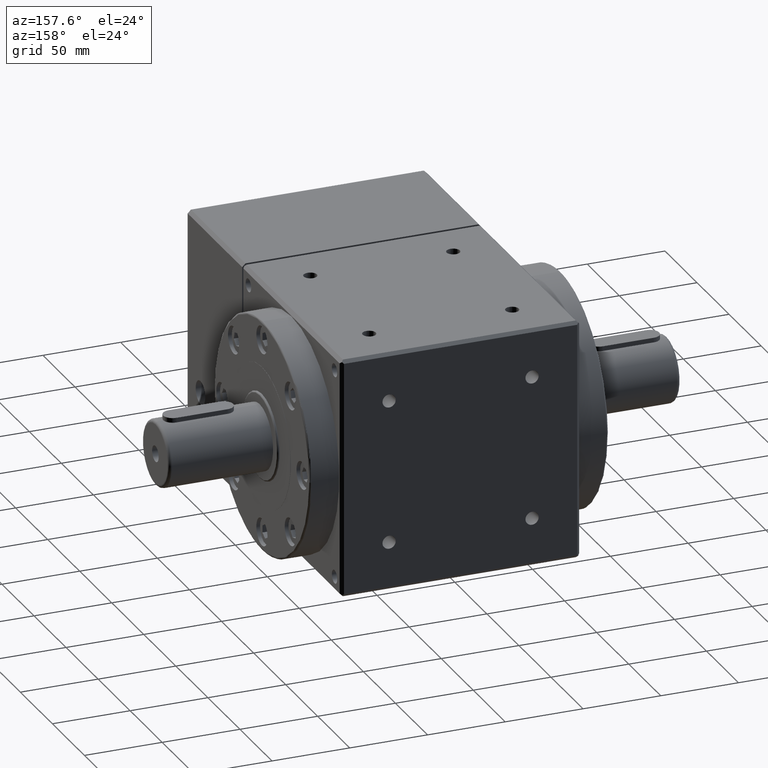
[diagram: clean part render]
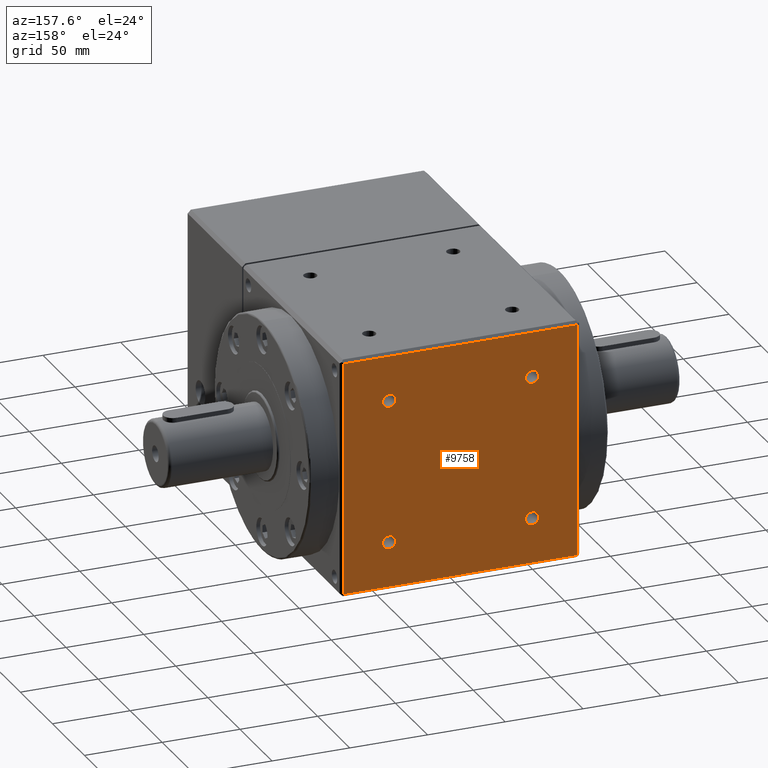
[diagram: same view with one face highlighted and labeled with its STEP entity id]
A machine part, auxiliary view. The second image highlights one B-rep face of the part: STEP entity #9758.
In plain terms, the highlighted planar face has unit normal (0, 1, 0).
Its self-contained STEP definition (entity closure, byte-faithful):
#16 = EDGE_CURVE ( 'NONE', #10994, #1822, #7664, .T. ) ;
#112 = EDGE_LOOP ( 'NONE', ( #13249, #743, #14977, #5500 ) ) ;
#219 = EDGE_CURVE ( 'NONE', #17060, #17840, #20127, .T. ) ;
#225 = CARTESIAN_POINT ( 'NONE',  ( -45.96194077712552000, 359.0000000000000000, 50.21194077712569000 ) ) ;
#244 = DIRECTION ( 'NONE',  ( -0.0000000000000000000, -1.000000000000000000, -0.0000000000000000000 ) ) ;
#351 = ORIENTED_EDGE ( 'NONE', *, *, #18875, .T. ) ;
#450 = CARTESIAN_POINT ( 'NONE',  ( 45.96194077712569000, 359.0000000000000000, 45.96194077712552000 ) ) ;
#731 = EDGE_CURVE ( 'NONE', #9528, #12861, #19149, .T. ) ;
#743 = ORIENTED_EDGE ( 'NONE', *, *, #16, .T. ) ;
#1088 = CARTESIAN_POINT ( 'NONE',  ( -75.00000000000005700, 359.0000000000000000, 75.00000000000012800 ) ) ;
#1107 = DIRECTION ( 'NONE',  ( 0.0000000000000000000, 0.0000000000000000000, 1.000000000000000000 ) ) ;
#1110 = CARTESIAN_POINT ( 'NONE',  ( 74.99999999999995700, 359.0000000000000000, 0.0000000000000000000 ) ) ;
#1375 = AXIS2_PLACEMENT_3D ( 'NONE', #4231, #4227, #4158 ) ;
#1425 = VERTEX_POINT ( 'NONE', #14806 ) ;
#1822 = VERTEX_POINT ( 'NONE', #1088 ) ;
#2024 = VECTOR ( 'NONE', #15757, 1000.000000000000000 ) ;
#2036 = AXIS2_PLACEMENT_3D ( 'NONE', #450, #11401, #2059 ) ;
#2059 = DIRECTION ( 'NONE',  ( 0.0000000000000000000, 0.0000000000000000000, 1.000000000000000000 ) ) ;
#2060 = CARTESIAN_POINT ( 'NONE',  ( 0.0000000000000000000, 359.0000000000000000, 0.0000000000000000000 ) ) ;
#2458 = DIRECTION ( 'NONE',  ( -0.0000000000000000000, -1.000000000000000000, -0.0000000000000000000 ) ) ;
#3457 = FACE_BOUND ( 'NONE', #13503, .T. ) ;
#3484 = VECTOR ( 'NONE', #13369, 1000.000000000000000 ) ;
#3675 = DIRECTION ( 'NONE',  ( 0.0000000000000000000, -0.0000000000000000000, 1.000000000000000000 ) ) ;
#3834 = CIRCLE ( 'NONE', #12319, 4.249999999999996400 ) ;
#3955 = FACE_BOUND ( 'NONE', #6663, .T. ) ;
#4029 = CIRCLE ( 'NONE', #10043, 4.249999999999996400 ) ;
#4158 = DIRECTION ( 'NONE',  ( 0.0000000000000000000, 0.0000000000000000000, 1.000000000000000000 ) ) ;
#4227 = DIRECTION ( 'NONE',  ( -0.0000000000000000000, -1.000000000000000000, -0.0000000000000000000 ) ) ;
#4231 = CARTESIAN_POINT ( 'NONE',  ( 45.96194077712569000, 359.0000000000000000, 45.96194077712552000 ) ) ;
#4331 = CARTESIAN_POINT ( 'NONE',  ( 75.00000000000002800, 359.0000000000000000, -74.99999999999995700 ) ) ;
#4522 = CARTESIAN_POINT ( 'NONE',  ( 45.96194077712552700, 359.0000000000000000, -41.71194077712568300 ) ) ;
#5177 = VERTEX_POINT ( 'NONE', #225 ) ;
#5193 = CARTESIAN_POINT ( 'NONE',  ( 45.96194077712552700, 359.0000000000000000, -50.21194077712568300 ) ) ;
#5500 = ORIENTED_EDGE ( 'NONE', *, *, #19699, .T. ) ;
#5572 = CARTESIAN_POINT ( 'NONE',  ( 45.96194077712569000, 359.0000000000000000, 41.71194077712552000 ) ) ;
#6270 = CIRCLE ( 'NONE', #14621, 4.249999999999996400 ) ;
#6513 = CARTESIAN_POINT ( 'NONE',  ( 45.96194077712569000, 359.0000000000000000, 50.21194077712551300 ) ) ;
#6663 = EDGE_LOOP ( 'NONE', ( #20054, #351 ) ) ;
#6882 = EDGE_LOOP ( 'NONE', ( #18639, #9941 ) ) ;
#7081 = VERTEX_POINT ( 'NONE', #4331 ) ;
#7193 = ORIENTED_EDGE ( 'NONE', *, *, #17984, .T. ) ;
#7271 = VERTEX_POINT ( 'NONE', #11218 ) ;
#7374 = CARTESIAN_POINT ( 'NONE',  ( -75.00000000000004300, 359.0000000000000000, 0.0000000000000000000 ) ) ;
#7381 = EDGE_LOOP ( 'NONE', ( #14581, #7193 ) ) ;
#7411 = CARTESIAN_POINT ( 'NONE',  ( -75.00000000000004300, 359.0000000000000000, -74.99999999999992900 ) ) ;
#7664 = LINE ( 'NONE', #7374, #3484 ) ;
#7767 = DIRECTION ( 'NONE',  ( -0.0000000000000000000, -1.000000000000000000, -0.0000000000000000000 ) ) ;
#7889 = EDGE_CURVE ( 'NONE', #17314, #13983, #6270, .T. ) ;
#8103 = CARTESIAN_POINT ( 'NONE',  ( 0.0000000000000000000, 359.0000000000000000, 75.00000000000004300 ) ) ;
#8177 = VECTOR ( 'NONE', #15129, 1000.000000000000000 ) ;
#8329 = DIRECTION ( 'NONE',  ( -0.0000000000000000000, -1.000000000000000000, -0.0000000000000000000 ) ) ;
#9367 = LINE ( 'NONE', #15541, #17566 ) ;
#9528 = VERTEX_POINT ( 'NONE', #4522 ) ;
#9661 = CARTESIAN_POINT ( 'NONE',  ( 45.96194077712552700, 359.0000000000000000, -45.96194077712568300 ) ) ;
#9758 = ADVANCED_FACE ( 'NONE', ( #15805, #3457, #3955, #19871, #19394 ), #15979, .T. ) ;
#9941 = ORIENTED_EDGE ( 'NONE', *, *, #18952, .T. ) ;
#10043 = AXIS2_PLACEMENT_3D ( 'NONE', #16997, #7767, #18538 ) ;
#10511 = DIRECTION ( 'NONE',  ( -0.0000000000000000000, -1.000000000000000000, -0.0000000000000000000 ) ) ;
#10994 = VERTEX_POINT ( 'NONE', #7411 ) ;
#11200 = DIRECTION ( 'NONE',  ( 0.0000000000000000000, 0.0000000000000000000, 1.000000000000000000 ) ) ;
#11218 = CARTESIAN_POINT ( 'NONE',  ( -45.96194077712552000, 359.0000000000000000, 41.71194077712569000 ) ) ;
#11401 = DIRECTION ( 'NONE',  ( -0.0000000000000000000, -1.000000000000000000, -0.0000000000000000000 ) ) ;
#11492 = EDGE_CURVE ( 'NONE', #5177, #7271, #19828, .T. ) ;
#11564 = ORIENTED_EDGE ( 'NONE', *, *, #7889, .T. ) ;
#11788 = CARTESIAN_POINT ( 'NONE',  ( -45.96194077712552000, 359.0000000000000000, 45.96194077712569000 ) ) ;
#12018 = CIRCLE ( 'NONE', #2036, 4.249999999999996400 ) ;
#12238 = LINE ( 'NONE', #1110, #8177 ) ;
#12319 = AXIS2_PLACEMENT_3D ( 'NONE', #19687, #10511, #1107 ) ;
#12434 = DIRECTION ( 'NONE',  ( -1.000000000000000000, -0.0000000000000000000, 0.0000000000000000000 ) ) ;
#12861 = VERTEX_POINT ( 'NONE', #5193 ) ;
#12927 = DIRECTION ( 'NONE',  ( 0.0000000000000000000, 1.000000000000000000, 0.0000000000000000000 ) ) ;
#13249 = ORIENTED_EDGE ( 'NONE', *, *, #19882, .T. ) ;
#13315 = DIRECTION ( 'NONE',  ( 0.0000000000000000000, 0.0000000000000000000, 1.000000000000000000 ) ) ;
#13369 = DIRECTION ( 'NONE',  ( 0.0000000000000000000, -0.0000000000000000000, 1.000000000000000000 ) ) ;
#13448 = CIRCLE ( 'NONE', #17005, 4.249999999999996400 ) ;
#13503 = EDGE_LOOP ( 'NONE', ( #11564, #19003 ) ) ;
#13983 = VERTEX_POINT ( 'NONE', #17448 ) ;
#14581 = ORIENTED_EDGE ( 'NONE', *, *, #11492, .T. ) ;
#14621 = AXIS2_PLACEMENT_3D ( 'NONE', #17541, #8329, #19052 ) ;
#14806 = CARTESIAN_POINT ( 'NONE',  ( 74.99999999999997200, 359.0000000000000000, 75.00000000000007100 ) ) ;
#14904 = DIRECTION ( 'NONE',  ( 0.0000000000000000000, 0.0000000000000000000, 1.000000000000000000 ) ) ;
#14954 = CARTESIAN_POINT ( 'NONE',  ( 45.96194077712552700, 359.0000000000000000, -45.96194077712568300 ) ) ;
#14977 = ORIENTED_EDGE ( 'NONE', *, *, #19353, .T. ) ;
#15001 = DIRECTION ( 'NONE',  ( -0.0000000000000000000, -1.000000000000000000, -0.0000000000000000000 ) ) ;
#15129 = DIRECTION ( 'NONE',  ( -0.0000000000000000000, 0.0000000000000000000, -1.000000000000000000 ) ) ;
#15233 = CARTESIAN_POINT ( 'NONE',  ( -45.96194077712568300, 359.0000000000000000, -41.71194077712552700 ) ) ;
#15541 = CARTESIAN_POINT ( 'NONE',  ( 0.0000000000000000000, 359.0000000000000000, -74.99999999999994300 ) ) ;
#15757 = DIRECTION ( 'NONE',  ( 1.000000000000000000, 0.0000000000000000000, -0.0000000000000000000 ) ) ;
#15805 = FACE_OUTER_BOUND ( 'NONE', #112, .T. ) ;
#15979 = PLANE ( 'NONE',  #16750 ) ;
#16750 = AXIS2_PLACEMENT_3D ( 'NONE', #2060, #12927, #3675 ) ;
#16997 = CARTESIAN_POINT ( 'NONE',  ( -45.96194077712568300, 359.0000000000000000, -45.96194077712552700 ) ) ;
#17005 = AXIS2_PLACEMENT_3D ( 'NONE', #9661, #244, #11200 ) ;
#17060 = VERTEX_POINT ( 'NONE', #6513 ) ;
#17275 = AXIS2_PLACEMENT_3D ( 'NONE', #14954, #15001, #14904 ) ;
#17314 = VERTEX_POINT ( 'NONE', #15233 ) ;
#17448 = CARTESIAN_POINT ( 'NONE',  ( -45.96194077712568300, 359.0000000000000000, -50.21194077712552000 ) ) ;
#17541 = CARTESIAN_POINT ( 'NONE',  ( -45.96194077712568300, 359.0000000000000000, -45.96194077712552700 ) ) ;
#17566 = VECTOR ( 'NONE', #12434, 1000.000000000000000 ) ;
#17840 = VERTEX_POINT ( 'NONE', #5572 ) ;
#17984 = EDGE_CURVE ( 'NONE', #7271, #5177, #3834, .T. ) ;
#18462 = AXIS2_PLACEMENT_3D ( 'NONE', #11788, #2458, #13315 ) ;
#18538 = DIRECTION ( 'NONE',  ( 0.0000000000000000000, 0.0000000000000000000, 1.000000000000000000 ) ) ;
#18542 = LINE ( 'NONE', #8103, #2024 ) ;
#18639 = ORIENTED_EDGE ( 'NONE', *, *, #219, .T. ) ;
#18875 = EDGE_CURVE ( 'NONE', #12861, #9528, #13448, .T. ) ;
#18952 = EDGE_CURVE ( 'NONE', #17840, #17060, #12018, .T. ) ;
#19003 = ORIENTED_EDGE ( 'NONE', *, *, #19216, .T. ) ;
#19052 = DIRECTION ( 'NONE',  ( 0.0000000000000000000, 0.0000000000000000000, 1.000000000000000000 ) ) ;
#19149 = CIRCLE ( 'NONE', #17275, 4.249999999999996400 ) ;
#19216 = EDGE_CURVE ( 'NONE', #13983, #17314, #4029, .T. ) ;
#19353 = EDGE_CURVE ( 'NONE', #1822, #1425, #18542, .T. ) ;
#19394 = FACE_BOUND ( 'NONE', #7381, .T. ) ;
#19687 = CARTESIAN_POINT ( 'NONE',  ( -45.96194077712552000, 359.0000000000000000, 45.96194077712569000 ) ) ;
#19699 = EDGE_CURVE ( 'NONE', #1425, #7081, #12238, .T. ) ;
#19828 = CIRCLE ( 'NONE', #18462, 4.249999999999996400 ) ;
#19871 = FACE_BOUND ( 'NONE', #6882, .T. ) ;
#19882 = EDGE_CURVE ( 'NONE', #7081, #10994, #9367, .T. ) ;
#20054 = ORIENTED_EDGE ( 'NONE', *, *, #731, .T. ) ;
#20127 = CIRCLE ( 'NONE', #1375, 4.249999999999996400 ) ;